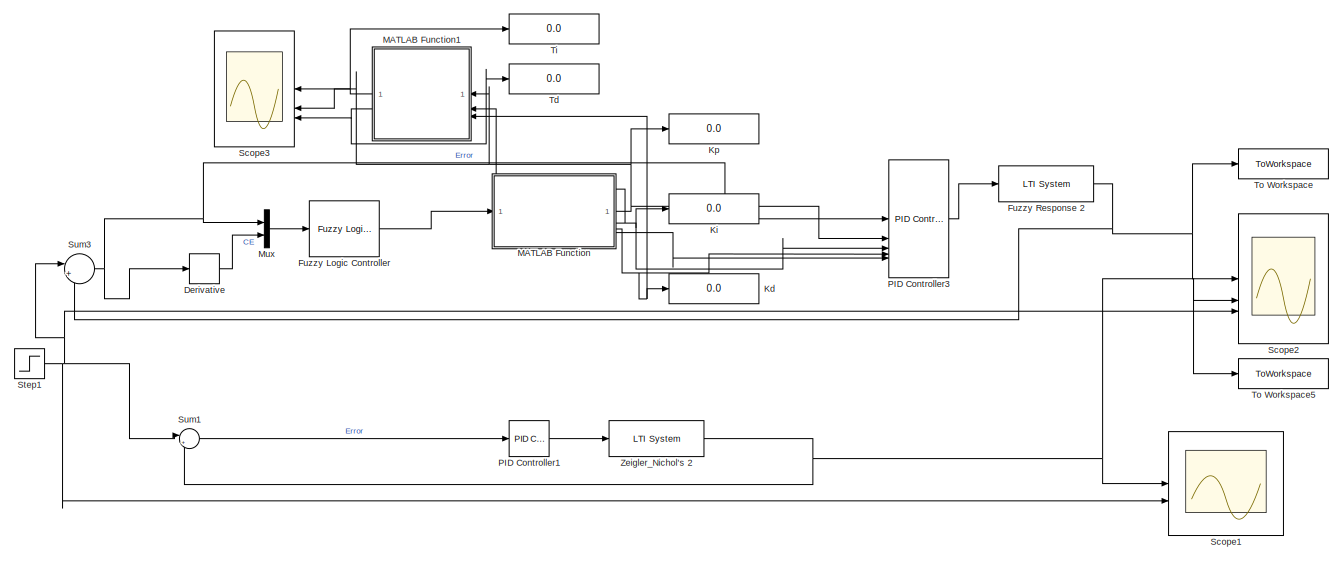
[diagram: root canvas - part 1/4, full width, top band]
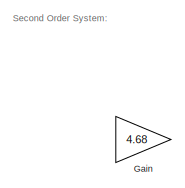
[diagram: root canvas - part 2/4, top left region]
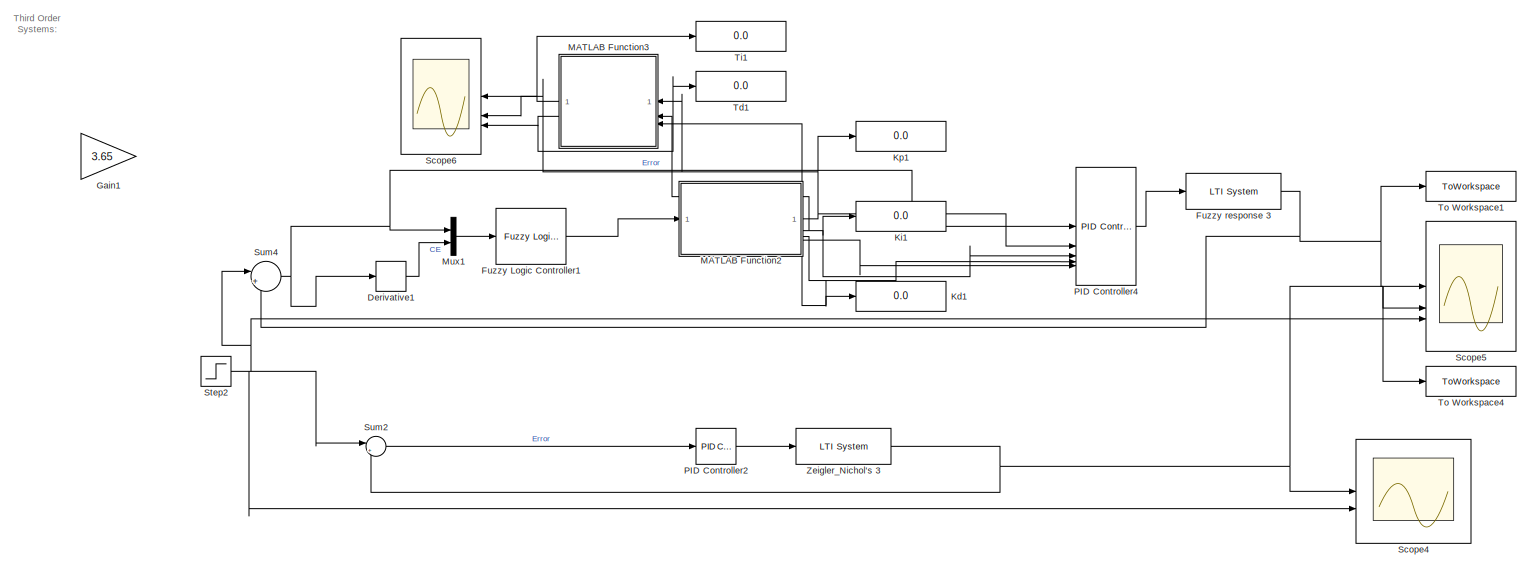
[diagram: root canvas - part 3/4, full width, middle band]
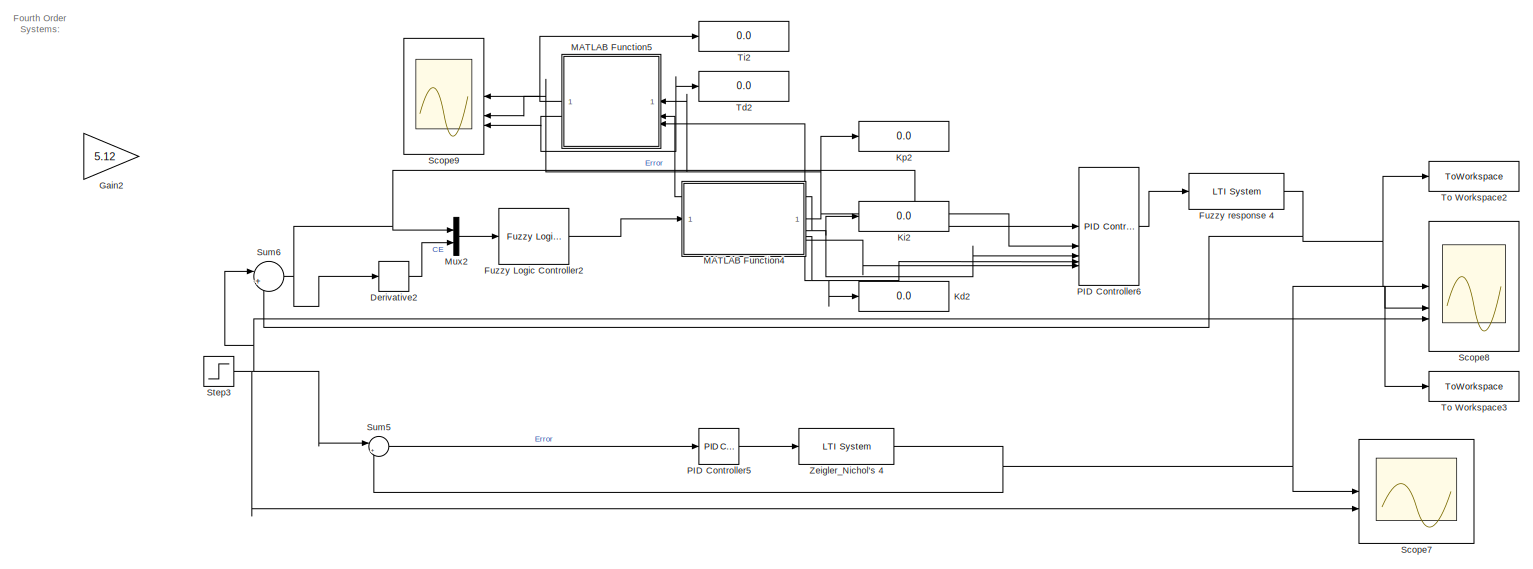
[diagram: root canvas - part 4/4, full width, bottom band]
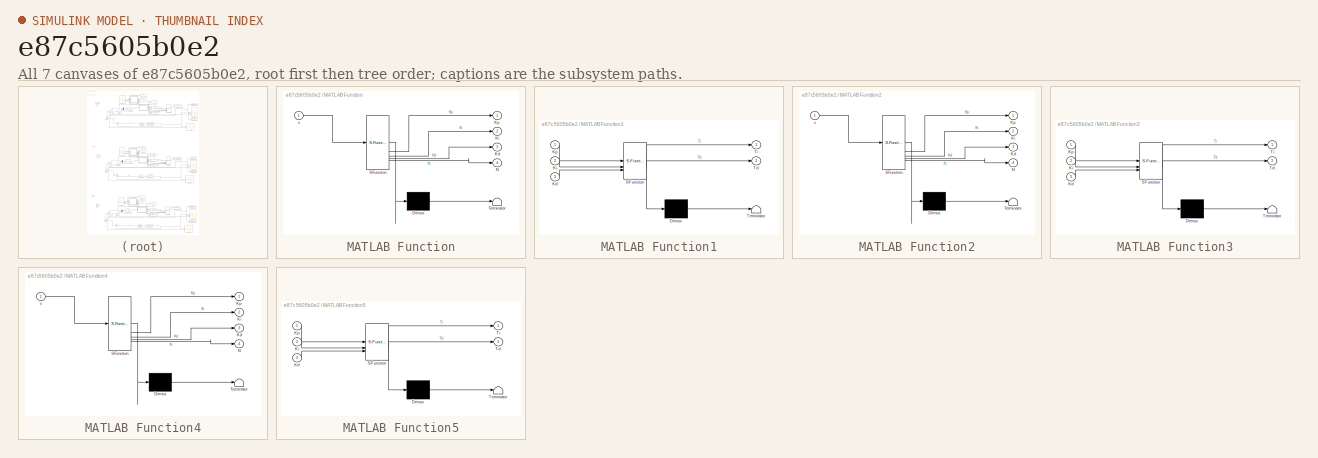
[diagram: thumbnail index - all 7 canvases of the model, root first then tree order]
MODEL slx_e87c5605b0e2
KIND model
CONFIG AbsTol = auto
CONFIG EnableMultiTasking = off
CONFIG FixedStep = auto
CONFIG MaxStep = auto
CONFIG MinStep = auto
CONFIG RelTol = 1e-3
CONFIG SampleTimeConstraint = Unconstrained
CONFIG SolverName = VariableStepAuto
CONFIG StartTime = 0.0
CONFIG StopTime = 20
BLOCK [Derivative] Derivative
BLOCK [Derivative] Derivative1
BLOCK [Derivative] Derivative2
BLOCK [Reference] Fuzzy Logic Controller  REF=fuzblock/Fuzzy Logic   (lib defined in mdl_858b3b3e7478)
Controller
  SourceBlock = fuzblock/Fuzzy Logic \nController
  SourceType = Fuzzy Inference System
BLOCK [Reference] Fuzzy Logic Controller1  REF=fuzblock/Fuzzy Logic   (lib defined in mdl_858b3b3e7478)
Controller
  SourceBlock = fuzblock/Fuzzy Logic \nController
  SourceType = Fuzzy Inference System
BLOCK [Reference] Fuzzy Logic Controller2  REF=fuzblock/Fuzzy Logic   (lib defined in mdl_858b3b3e7478)
Controller
  SourceBlock = fuzblock/Fuzzy Logic \nController
  SourceType = Fuzzy Inference System
BLOCK [Reference] Fuzzy Response 2  REF=cstblocks/LTI System
  SourceBlock = cstblocks/LTI System
  SourceType = LTI Block
BLOCK [Reference] Fuzzy response 3  REF=cstblocks/LTI System
  SourceBlock = cstblocks/LTI System
  SourceType = LTI Block
BLOCK [Reference] Fuzzy response 4  REF=cstblocks/LTI System
  SourceBlock = cstblocks/LTI System
  SourceType = LTI Block
BLOCK [Gain] Gain
  Commented = on
  Gain = 4.68
BLOCK [Gain] Gain1
  Commented = on
  Gain = 3.65
BLOCK [Gain] Gain2
  Commented = on
  Gain = 5.12
BLOCK [Display] Kd
  Decimation = 1
BLOCK [Display] Kd1
  Decimation = 1
BLOCK [Display] Kd2
  Decimation = 1
BLOCK [Display] Ki
  Decimation = 1
BLOCK [Display] Ki1
  Decimation = 1
BLOCK [Display] Ki2
  Decimation = 1
BLOCK [Display] Kp
  Decimation = 1
BLOCK [Display] Kp1
  Decimation = 1
BLOCK [Display] Kp2
  Decimation = 1
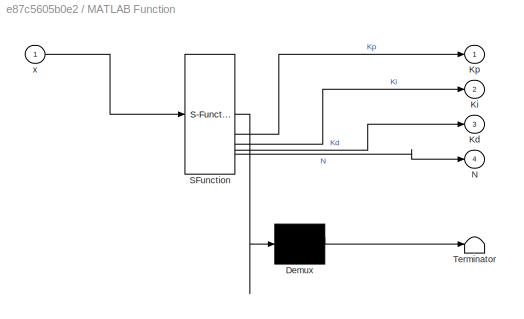
BLOCK [SubSystem] MATLAB Function
  ErrorFcn = Stateflow.Translate.translate
  PermitHierarchicalResolution = ExplicitOnly
  SFBlockType = MATLAB Function
  TreatAsAtomicUnit = on
BLOCK [Demux] MATLAB Function/ Demux 
  Outputs = 1
BLOCK [S-Function] MATLAB Function/ SFunction 
  EnableBusSupport = on
  FunctionName = sf_sfun
  PortCounts = [1 5]
  SFcnIsStateOwnerBlock = off
  SFunctionDeploymentMode = off
  Tag = Stateflow S-Function 2
BLOCK [Terminator] MATLAB Function/ Terminator 
BLOCK [Outport] MATLAB Function/Kd
  Port = 3
BLOCK [Outport] MATLAB Function/Ki
  Port = 2
BLOCK [Outport] MATLAB Function/Kp
BLOCK [Outport] MATLAB Function/N
  Port = 4
BLOCK [Inport] MATLAB Function/x
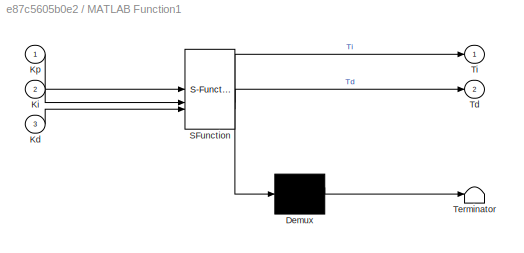
BLOCK [SubSystem] MATLAB Function1
  ErrorFcn = Stateflow.Translate.translate
  NameLocation = top
  PermitHierarchicalResolution = ExplicitOnly
  SFBlockType = MATLAB Function
  TreatAsAtomicUnit = on
BLOCK [Demux] MATLAB Function1/ Demux 
  Outputs = 1
BLOCK [S-Function] MATLAB Function1/ SFunction 
  EnableBusSupport = on
  FunctionName = sf_sfun
  PortCounts = [3 3]
  SFcnIsStateOwnerBlock = off
  SFunctionDeploymentMode = off
  Tag = Stateflow S-Function 1
BLOCK [Terminator] MATLAB Function1/ Terminator 
BLOCK [Inport] MATLAB Function1/Kd
  Port = 3
BLOCK [Inport] MATLAB Function1/Ki
  Port = 2
BLOCK [Inport] MATLAB Function1/Kp
BLOCK [Outport] MATLAB Function1/Td
  Port = 2
BLOCK [Outport] MATLAB Function1/Ti
BLOCK [SubSystem] MATLAB Function2
  ErrorFcn = Stateflow.Translate.translate
  PermitHierarchicalResolution = ExplicitOnly
  SFBlockType = MATLAB Function
  TreatAsAtomicUnit = on
BLOCK [Demux] MATLAB Function2/ Demux 
  Outputs = 1
BLOCK [S-Function] MATLAB Function2/ SFunction 
  EnableBusSupport = on
  FunctionName = sf_sfun
  PortCounts = [1 5]
  SFcnIsStateOwnerBlock = off
  SFunctionDeploymentMode = off
  Tag = Stateflow S-Function 3
BLOCK [Terminator] MATLAB Function2/ Terminator 
BLOCK [Outport] MATLAB Function2/Kd
  Port = 3
BLOCK [Outport] MATLAB Function2/Ki
  Port = 2
BLOCK [Outport] MATLAB Function2/Kp
BLOCK [Outport] MATLAB Function2/N
  Port = 4
BLOCK [Inport] MATLAB Function2/x
BLOCK [SubSystem] MATLAB Function3
  ErrorFcn = Stateflow.Translate.translate
  NameLocation = top
  PermitHierarchicalResolution = ExplicitOnly
  SFBlockType = MATLAB Function
  TreatAsAtomicUnit = on
BLOCK [Demux] MATLAB Function3/ Demux 
  Outputs = 1
BLOCK [S-Function] MATLAB Function3/ SFunction 
  EnableBusSupport = on
  FunctionName = sf_sfun
  PortCounts = [3 3]
  SFcnIsStateOwnerBlock = off
  SFunctionDeploymentMode = off
  Tag = Stateflow S-Function 4
BLOCK [Terminator] MATLAB Function3/ Terminator 
BLOCK [Inport] MATLAB Function3/Kd
  Port = 3
BLOCK [Inport] MATLAB Function3/Ki
  Port = 2
BLOCK [Inport] MATLAB Function3/Kp
BLOCK [Outport] MATLAB Function3/Td
  Port = 2
BLOCK [Outport] MATLAB Function3/Ti
BLOCK [SubSystem] MATLAB Function4
  ErrorFcn = Stateflow.Translate.translate
  PermitHierarchicalResolution = ExplicitOnly
  SFBlockType = MATLAB Function
  TreatAsAtomicUnit = on
BLOCK [Demux] MATLAB Function4/ Demux 
  Outputs = 1
BLOCK [S-Function] MATLAB Function4/ SFunction 
  EnableBusSupport = on
  FunctionName = sf_sfun
  PortCounts = [1 5]
  SFcnIsStateOwnerBlock = off
  SFunctionDeploymentMode = off
  Tag = Stateflow S-Function 5
BLOCK [Terminator] MATLAB Function4/ Terminator 
BLOCK [Outport] MATLAB Function4/Kd
  Port = 3
BLOCK [Outport] MATLAB Function4/Ki
  Port = 2
BLOCK [Outport] MATLAB Function4/Kp
BLOCK [Outport] MATLAB Function4/N
  Port = 4
BLOCK [Inport] MATLAB Function4/x
BLOCK [SubSystem] MATLAB Function5
  ErrorFcn = Stateflow.Translate.translate
  NameLocation = top
  PermitHierarchicalResolution = ExplicitOnly
  SFBlockType = MATLAB Function
  TreatAsAtomicUnit = on
BLOCK [Demux] MATLAB Function5/ Demux 
  Outputs = 1
BLOCK [S-Function] MATLAB Function5/ SFunction 
  EnableBusSupport = on
  FunctionName = sf_sfun
  PortCounts = [3 3]
  SFcnIsStateOwnerBlock = off
  SFunctionDeploymentMode = off
  Tag = Stateflow S-Function 6
BLOCK [Terminator] MATLAB Function5/ Terminator 
BLOCK [Inport] MATLAB Function5/Kd
  Port = 3
BLOCK [Inport] MATLAB Function5/Ki
  Port = 2
BLOCK [Inport] MATLAB Function5/Kp
BLOCK [Outport] MATLAB Function5/Td
  Port = 2
BLOCK [Outport] MATLAB Function5/Ti
BLOCK [Mux] Mux
  DisplayOption = bar
  Inputs = 2
BLOCK [Mux] Mux1
  DisplayOption = bar
  Inputs = 2
BLOCK [Mux] Mux2
  DisplayOption = bar
  Inputs = 2
BLOCK [Reference] PID Controller1  REF=slpidlib/PID Controller
  LibrarySourceBlock = simulink/Continuous/PID Controller
  SourceBlock = slpidlib/PID Controller
  SourceType = PID 1dof
BLOCK [Reference] PID Controller2  REF=slpidlib/PID Controller
  LibrarySourceBlock = simulink/Continuous/PID Controller
  SourceBlock = slpidlib/PID Controller
  SourceType = PID 1dof
BLOCK [Reference] PID Controller3  REF=slpidlib/PID Controller
  LibrarySourceBlock = simulink/Continuous/PID Controller
  SourceBlock = slpidlib/PID Controller
  SourceType = PID 1dof
BLOCK [Reference] PID Controller4  REF=slpidlib/PID Controller
  LibrarySourceBlock = simulink/Continuous/PID Controller
  SourceBlock = slpidlib/PID Controller
  SourceType = PID 1dof
BLOCK [Reference] PID Controller5  REF=slpidlib/PID Controller
  LibrarySourceBlock = simulink/Continuous/PID Controller
  SourceBlock = slpidlib/PID Controller
  SourceType = PID 1dof
BLOCK [Reference] PID Controller6  REF=slpidlib/PID Controller
  LibrarySourceBlock = simulink/Continuous/PID Controller
  SourceBlock = slpidlib/PID Controller
  SourceType = PID 1dof
BLOCK [Scope] Scope1
  Floating = off
  NumInputPorts = 2
  ScopeSpecificationString = Simulink.scopes.TimeScopeBlockCfg('CurrentConfiguration', extmgr.ConfigurationSet(extmgr.Configuration('Core','General UI',true),extmgr.Configuration('Core','Source UI',true),extmgr.Configuration('Sources','WiredSimulink',true,'DataLoggingVariableName','ScopeData1'),extmgr.Configuration('Visuals','Time Domain',true,'SerializedDisplays',{struct('MinYLimReal','-0.16796','MaxYLimReal','1.74267','YLab...<+1482ch>
BLOCK [Scope] Scope2
  Floating = off
  NumInputPorts = 3
  ScopeSpecificationString = Simulink.scopes.TimeScopeBlockCfg('CurrentConfiguration', extmgr.ConfigurationSet(extmgr.Configuration('Core','General UI',true),extmgr.Configuration('Core','Source UI',true),extmgr.Configuration('Sources','WiredSimulink',true,'DataLoggingVariableName','ScopeData2'),extmgr.Configuration('Visuals','Time Domain',true,'SerializedDisplays',{struct('MinYLimReal','-0.17391','MaxYLimReal','1.66471','YLab...<+1628ch>
BLOCK [Scope] Scope3
  Floating = off
  NameLocation = top
  NumInputPorts = 3
  ScopeSpecificationString = Simulink.scopes.TimeScopeBlockCfg('CurrentConfiguration', extmgr.ConfigurationSet(extmgr.Configuration('Core','General UI',true),extmgr.Configuration('Core','Source UI',true),extmgr.Configuration('Sources','WiredSimulink',true,'DataLoggingVariableName','ScopeData3'),extmgr.Configuration('Visuals','Time Domain',true,'SerializedDisplays',{struct('MinYLimReal','-0.3037','MaxYLimReal','3.33615','YLabe...<+1646ch>
BLOCK [Scope] Scope4
  Floating = off
  NumInputPorts = 2
  ScopeSpecificationString = Simulink.scopes.TimeScopeBlockCfg('CurrentConfiguration', extmgr.ConfigurationSet(extmgr.Configuration('Core','General UI',true),extmgr.Configuration('Core','Source UI',true),extmgr.Configuration('Sources','WiredSimulink',true),extmgr.Configuration('Visuals','Time Domain',true,'SerializedDisplays',{struct('MinYLimReal','-0.16796','MaxYLimReal','1.74267','YLabelReal','','MinYLimMag','0.00000','MaxY...<+1443ch>
BLOCK [Scope] Scope5
  Floating = off
  NumInputPorts = 3
  ScopeSpecificationString = Simulink.scopes.TimeScopeBlockCfg('CurrentConfiguration', extmgr.ConfigurationSet(extmgr.Configuration('Core','General UI',true),extmgr.Configuration('Core','Source UI',true),extmgr.Configuration('Sources','WiredSimulink',true,'DataLoggingVariableName','ScopeData4'),extmgr.Configuration('Visuals','Time Domain',true,'SerializedDisplays',{struct('MinYLimReal','-0.17391','MaxYLimReal','1.66471','YLab...<+1632ch>
BLOCK [Scope] Scope6
  Floating = off
  NameLocation = top
  NumInputPorts = 3
  ScopeSpecificationString = Simulink.scopes.TimeScopeBlockCfg('CurrentConfiguration', extmgr.ConfigurationSet(extmgr.Configuration('Core','General UI',true),extmgr.Configuration('Core','Source UI',true),extmgr.Configuration('Sources','WiredSimulink',true,'DataLoggingVariableName','ScopeData5'),extmgr.Configuration('Visuals','Time Domain',true,'SerializedDisplays',{struct('MinYLimReal','-0.3037','MaxYLimReal','2.73331','YLabe...<+1645ch>
BLOCK [Scope] Scope7
  Floating = off
  NumInputPorts = 2
  ScopeSpecificationString = Simulink.scopes.TimeScopeBlockCfg('CurrentConfiguration', extmgr.ConfigurationSet(extmgr.Configuration('Core','General UI',true),extmgr.Configuration('Core','Source UI',true),extmgr.Configuration('Sources','WiredSimulink',true,'DataLoggingVariableName','ScopeData6'),extmgr.Configuration('Visuals','Time Domain',true,'SerializedDisplays',{struct('MinYLimReal','-0.16796','MaxYLimReal','1.74267','YLab...<+1482ch>
BLOCK [Scope] Scope8
  Floating = off
  NumInputPorts = 3
  ScopeSpecificationString = Simulink.scopes.TimeScopeBlockCfg('CurrentConfiguration', extmgr.ConfigurationSet(extmgr.Configuration('Core','General UI',true),extmgr.Configuration('Core','Source UI',true),extmgr.Configuration('Sources','WiredSimulink',true,'DataLoggingVariableName','ScopeData7'),extmgr.Configuration('Visuals','Time Domain',true,'SerializedDisplays',{struct('MinYLimReal','-0.17391','MaxYLimReal','1.66471','YLab...<+1632ch>
BLOCK [Scope] Scope9
  Floating = off
  NameLocation = top
  NumInputPorts = 3
  ScopeSpecificationString = Simulink.scopes.TimeScopeBlockCfg('CurrentConfiguration', extmgr.ConfigurationSet(extmgr.Configuration('Core','General UI',true),extmgr.Configuration('Core','Source UI',true),extmgr.Configuration('Sources','WiredSimulink',true,'DataLoggingVariableName','ScopeData8'),extmgr.Configuration('Visuals','Time Domain',true,'SerializedDisplays',{struct('MinYLimReal','-0.3037','MaxYLimReal','2.73331','YLabe...<+1647ch>
BLOCK [Step] Step1
  SampleTime = 0
BLOCK [Step] Step2
  SampleTime = 0
BLOCK [Step] Step3
  SampleTime = 0
BLOCK [Sum] Sum1
  Inputs = |+-
BLOCK [Sum] Sum2
  Inputs = |+-
BLOCK [Sum] Sum3
  Inputs = |+-
BLOCK [Sum] Sum4
  Inputs = |+-
BLOCK [Sum] Sum5
  Inputs = |+-
BLOCK [Sum] Sum6
  Inputs = |+-
BLOCK [Display] Td
  Decimation = 1
BLOCK [Display] Td1
  Decimation = 1
BLOCK [Display] Td2
  Decimation = 1
BLOCK [Display] Ti
  Decimation = 1
BLOCK [Display] Ti1
  Decimation = 1
BLOCK [Display] Ti2
  Decimation = 1
BLOCK [ToWorkspace] To Workspace
  FixptAsFi = on
  MaxDataPoints = inf
  SaveFormat = Timeseries
  VariableName = Fuzzy_2
BLOCK [ToWorkspace] To Workspace1
  FixptAsFi = on
  MaxDataPoints = inf
  SaveFormat = Timeseries
  VariableName = Fuzzy_3
BLOCK [ToWorkspace] To Workspace2
  FixptAsFi = on
  MaxDataPoints = inf
  SaveFormat = Timeseries
  VariableName = Fuzzy_4
BLOCK [ToWorkspace] To Workspace3
  FixptAsFi = on
  MaxDataPoints = inf
  SaveFormat = Timeseries
  VariableName = Zeig_4
BLOCK [ToWorkspace] To Workspace4
  FixptAsFi = on
  MaxDataPoints = inf
  SaveFormat = Timeseries
  VariableName = Zeig_3
BLOCK [ToWorkspace] To Workspace5
  FixptAsFi = on
  MaxDataPoints = inf
  SaveFormat = Timeseries
  VariableName = Zeig_2
BLOCK [Reference] Zeigler_Nichol's 2  REF=cstblocks/LTI System
  SourceBlock = cstblocks/LTI System
  SourceType = LTI Block
BLOCK [Reference] Zeigler_Nichol's 3  REF=cstblocks/LTI System
  SourceBlock = cstblocks/LTI System
  SourceType = LTI Block
BLOCK [Reference] Zeigler_Nichol's 4  REF=cstblocks/LTI System
  SourceBlock = cstblocks/LTI System
  SourceType = LTI Block
ANNOTATION (root): Fourth Order Systems:
ANNOTATION (root): Second Order System:
ANNOTATION (root): Third Order Systems:
LINE Derivative1:1 -> Mux1:2
LINE Derivative2:1 -> Mux2:2
LINE Derivative:1 -> Mux:2
LINE Fuzzy Logic Controller1:1 -> MATLAB Function2:1
LINE Fuzzy Logic Controller2:1 -> MATLAB Function4:1
LINE Fuzzy Logic Controller:1 -> MATLAB Function:1
NET Fuzzy Response 2:1 -> Scope2:1, Sum3:2, To Workspace:1
NET Fuzzy response 3:1 -> Scope5:1, Sum4:2, To Workspace1:1
NET Fuzzy response 4:1 -> Scope8:1, Sum6:2, To Workspace2:1
NET MATLAB Function1:1 -> Scope3:2, Ti:1
NET MATLAB Function1:2 -> Scope3:3, Td:1
NET MATLAB Function2:1 -> Kp1:1, MATLAB Function3:1, PID Controller4:2, Scope6:1
NET MATLAB Function2:2 -> Ki1:1, MATLAB Function3:2, PID Controller4:3
NET MATLAB Function2:3 -> Kd1:1, MATLAB Function3:3, PID Controller4:4
LINE MATLAB Function2:4 -> PID Controller4:5
NET MATLAB Function3:1 -> Scope6:2, Ti1:1
NET MATLAB Function3:2 -> Scope6:3, Td1:1
NET MATLAB Function4:1 -> Kp2:1, MATLAB Function5:1, PID Controller6:2, Scope9:1
NET MATLAB Function4:2 -> Ki2:1, MATLAB Function5:2, PID Controller6:3
NET MATLAB Function4:3 -> Kd2:1, MATLAB Function5:3, PID Controller6:4
LINE MATLAB Function4:4 -> PID Controller6:5
NET MATLAB Function5:1 -> Scope9:2, Ti2:1
NET MATLAB Function5:2 -> Scope9:3, Td2:1
NET MATLAB Function:1 -> Kp:1, MATLAB Function1:1, PID Controller3:2, Scope3:1
NET MATLAB Function:2 -> Ki:1, MATLAB Function1:2, PID Controller3:3
NET MATLAB Function:3 -> Kd:1, MATLAB Function1:3, PID Controller3:4
LINE MATLAB Function:4 -> PID Controller3:5
LINE Mux1:1 -> Fuzzy Logic Controller1:1
LINE Mux2:1 -> Fuzzy Logic Controller2:1
LINE Mux:1 -> Fuzzy Logic Controller:1
LINE PID Controller1:1 -> Zeigler_Nichol's 2:1
LINE PID Controller2:1 -> Zeigler_Nichol's 3:1
LINE PID Controller3:1 -> Fuzzy Response 2:1
LINE PID Controller4:1 -> Fuzzy response 3:1
LINE PID Controller5:1 -> Zeigler_Nichol's 4:1
LINE PID Controller6:1 -> Fuzzy response 4:1
NET Step1:1 -> Scope1:2, Scope2:3, Sum1:1, Sum3:1
NET Step2:1 -> Scope4:2, Scope5:3, Sum2:1, Sum4:1
NET Step3:1 -> Scope7:2, Scope8:3, Sum5:1, Sum6:1
LINE Sum1:1 -> PID Controller1:1
LINE Sum2:1 -> PID Controller2:1
NET Sum3:1 -> Derivative:1, Mux:1, PID Controller3:1
NET Sum4:1 -> Derivative1:1, Mux1:1, PID Controller4:1
LINE Sum5:1 -> PID Controller5:1
NET Sum6:1 -> Derivative2:1, Mux2:1, PID Controller6:1
NET Zeigler_Nichol's 2:1 -> Scope1:1, Scope2:2, Sum1:2, To Workspace5:1
NET Zeigler_Nichol's 3:1 -> Scope4:1, Scope5:2, Sum2:2, To Workspace4:1
NET Zeigler_Nichol's 4:1 -> Scope7:1, Scope8:2, Sum5:2, To Workspace3:1
note: NET lines group one-source signal fan-out (src -> all destinations, sorted); 1:1 wires keep LINE
CHART MATLAB Function1 states=1 transitions=1
  STATE_LABEL 'eML_blk_kernel()'
  STATE_LABEL 'SCRIPT:\nfunction [Ti, Td] = pid_params_second(Kp,Ki,Kd)\n\n\nTi = Kp/Ki;\nTd = Kd/Kp;\n\nend'
CHART MATLAB Function states=1 transitions=1
  STATE_LABEL 'eML_blk_kernel()'
  STATE_LABEL 'SCRIPT:\nfunction [Kp,Ki,Kd,N]    = func_second_order(x)\n%UNTITLED6 Summary of this function goes here\n%   Detailed explanation goes here\n\nKu = 4.68;\nTu = 3.28;\nKpmax = 0.6*Ku;\nKpmin = 0.32*Ku;\nKdmax = 0.15*Ku*Tu;\nKdmin = 0.08*Ku*Tu;\n\nKp = x(1)*(Kpmax-Kpmin)+Kpmin;\nKd = x(2)*(Kdmax - Kdmin)+Kdmin;\n\nalpha = x(3);\nKi = Kp^2/(alpha*Kd);\nN=100;\n\n'
CHART MATLAB Function2 states=1 transitions=1
  STATE_LABEL 'eML_blk_kernel()'
  STATE_LABEL 'SCRIPT:\nfunction [Kp,Ki,Kd,N]    = func_third_order(x)\n%UNTITLED6 Summary of this function goes here\n%   Detailed explanation goes here\n\nKu = 3.65;\nTu = 2.06;\nKpmax = 0.6*Ku;\nKpmin = 0.32*Ku;\nKdmax = 0.15*Ku*Tu;\nKdmin = 0.08*Ku*Tu;\n\nKp = x(1)*(Kpmax-Kpmin)+Kpmin;\nKd = x(2)*(Kdmax - Kdmin)+Kdmin;\n\nalpha = x(3);\nKi = Kp^2/(alpha*Kd);\nN=100;\n\n'
CHART MATLAB Function3 states=1 transitions=1
  STATE_LABEL 'eML_blk_kernel()'
  STATE_LABEL 'SCRIPT:\nfunction [Ti, Td] = pid_params_third(Kp,Ki,Kd)\n\n\nTi = Kp/Ki;\nTd = Kd/Kp;\n\nend'
CHART MATLAB Function4 states=1 transitions=1
  STATE_LABEL 'eML_blk_kernel()'
  STATE_LABEL 'SCRIPT:\nfunction [Kp,Ki,Kd,N]    = func_fourth_order(x)\n%UNTITLED6 Summary of this function goes here\n%   Detailed explanation goes here\n\nKu = 5.12;\nTu = 2.704;\nKpmax = 0.6*Ku;\nKpmin = 0.32*Ku;\nKdmax = 0.15*Ku*Tu;\nKdmin = 0.08*Ku*Tu;\n\nKp = x(1)*(Kpmax-Kpmin)+Kpmin;\nKd = x(2)*(Kdmax - Kdmin)+Kdmin;\n\nalpha = x(3);\nKi = Kp^2/(alpha*Kd);\nN=100;\n\n'
CHART MATLAB Function5 states=1 transitions=1
  STATE_LABEL 'eML_blk_kernel()'
  STATE_LABEL 'SCRIPT:\nfunction [Ti, Td] = pid_params_fourth(Kp,Ki,Kd)\n\n\nTi = Kp/Ki;\nTd = Kd/Kp;\n\nend'
CHART  states=0 transitions=0
CHART  states=0 transitions=0
CHART  states=0 transitions=0
CHART  states=0 transitions=0
CHART  states=0 transitions=0
CHART  states=0 transitions=0
